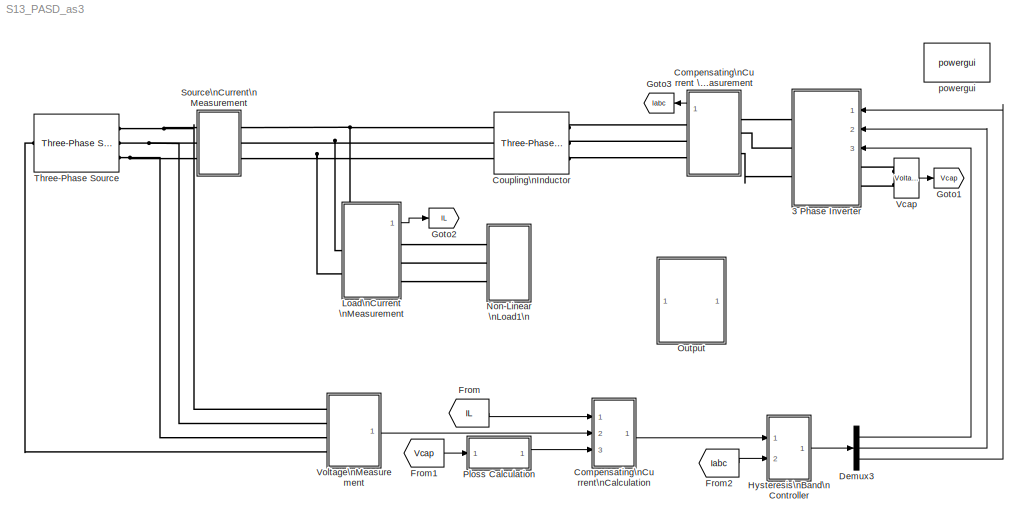
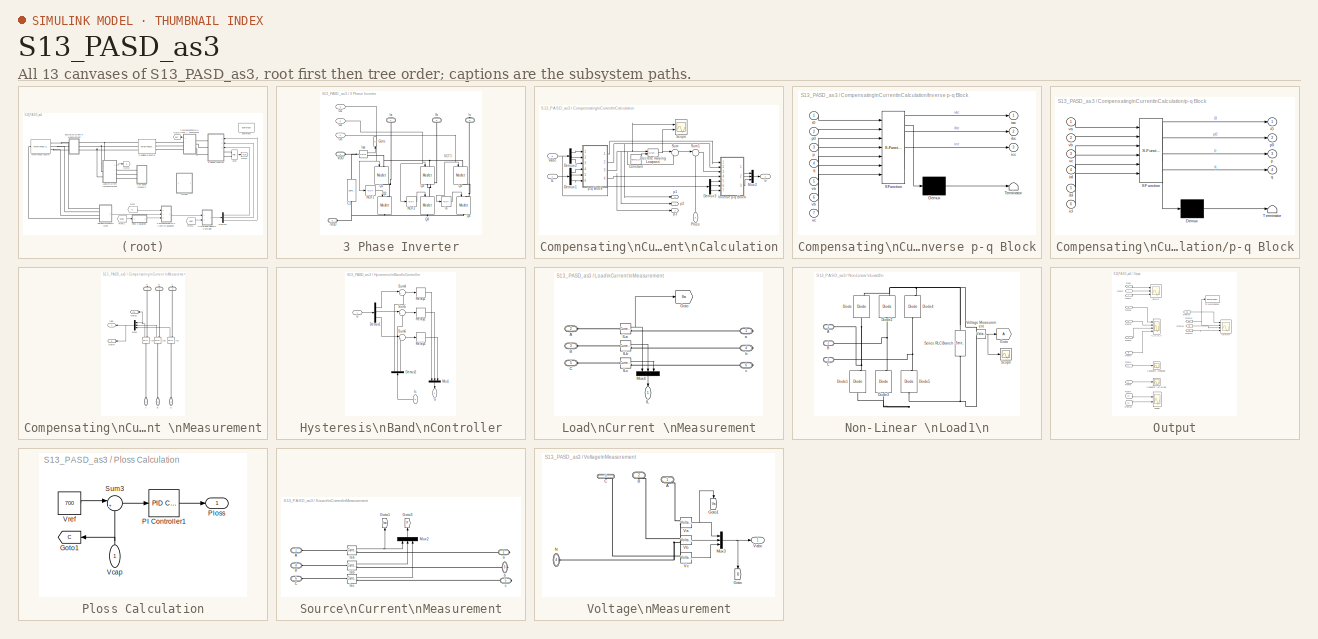
[diagram: thumbnail index - all 13 canvases of the model, root first then tree order]
MODEL S13_PASD_as3
KIND model
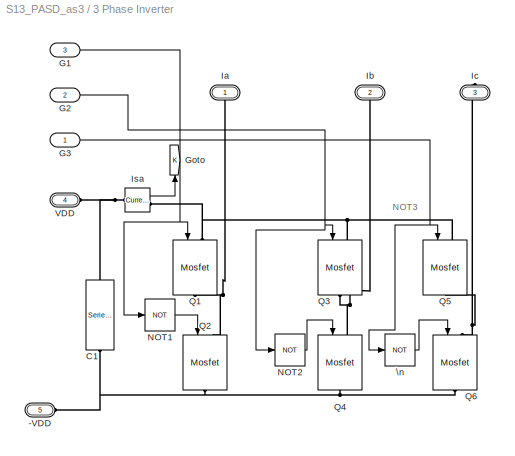
BLOCK [SubSystem] 3 Phase Inverter
  Ports = [3, 0, 0, 0, 0, 2, 3]
  RequestExecContextInheritance = off
  SID = 217
BLOCK [PMIOPort] 3 Phase Inverter/-VDD
  Port = 5
  SID = 238
  Side = Left
BLOCK [Reference] 3 Phase Inverter/C1  REF=powerlib/Elements/Series RLC Branch
  BranchType = C
  Capacitance = 500e-6
  Inductance = 1e-3
  InitialCurrent = 0
  InitialVoltage = 700
  LConnTagsString = __new0
  Measurements = None
  Ports = [0, 0, 0, 0, 0, 1, 1]
  RConnTagsString = __new0
  Resistance = 1
  SID = 222
  SetiL0 = off
  Setx0 = off
  SourceBlock = powerlib/Elements/Series RLC Branch
  SourceType = Series RLC Branch
BLOCK [Inport] 3 Phase Inverter/G1
  Port = 3
  SID = 218
BLOCK [Inport] 3 Phase Inverter/G2
  Port = 2
  SID = 219
BLOCK [Inport] 3 Phase Inverter/G3
  SID = 220
BLOCK [Goto] 3 Phase Inverter/Goto
  GotoTag = K
  SID = 224
  TagVisibility = global
BLOCK [PMIOPort] 3 Phase Inverter/Ia
  SID = 234
  Side = Right
BLOCK [PMIOPort] 3 Phase Inverter/Ib
  Port = 2
  SID = 235
  Side = Right
BLOCK [PMIOPort] 3 Phase Inverter/Ic
  Port = 3
  SID = 236
  Side = Right
BLOCK [Reference] 3 Phase Inverter/Isa  REF=powerlib/Measurements/Current Measurement
  OutputType = Complex
  PSBequivalent = 0
  PhasorSimulation = off
  Ports = [0, 1, 0, 0, 0, 1, 1]
  RTWMemSecDataConstants = Inherit from model
  RTWMemSecDataInternal = Inherit from model
  RTWMemSecDataParameters = Inherit from model
  RTWMemSecFuncExecute = Inherit from model
  RTWMemSecFuncInitTerm = Inherit from model
  SID = 225
  SourceBlock = powerlib/Measurements/Current Measurement
  SourceType = Current Measurement
  UserDataPersistent = on
BLOCK [Logic] 3 Phase Inverter/NOT1
  AllPortsSameDT = off
  Operator = NOT
  OutDataTypeStr = boolean
  Ports = [1, 1]
  SID = 226
BLOCK [Logic] 3 Phase Inverter/NOT2
  AllPortsSameDT = off
  Operator = NOT
  OutDataTypeStr = boolean
  Ports = [1, 1]
  SID = 227
BLOCK [Reference] 3 Phase Inverter/Q1  REF=powerlib/Power\nElectronics/Mosfet
  Cs = inf
  IC = 0
  Lon = 0
  Measurements = off
  Ports = [1, 0, 0, 0, 0, 1, 1]
  RTWMemSecDataConstants = Inherit from model
  RTWMemSecDataInternal = Inherit from model
  RTWMemSecDataParameters = Inherit from model
  RTWMemSecFuncExecute = Inherit from model
  RTWMemSecFuncInitTerm = Inherit from model
  Rd = 0.01
  Ron = 0.01
  Rs = 1e10
  SID = 228
  SourceBlock = powerlib/Power\nElectronics/Mosfet
  SourceType = Mosfet
  Vfd = 0
BLOCK [Reference] 3 Phase Inverter/Q2  REF=powerlib/Power\nElectronics/Mosfet
  Cs = inf
  IC = 0
  Lon = 0
  Measurements = off
  Ports = [1, 0, 0, 0, 0, 1, 1]
  RTWMemSecDataConstants = Inherit from model
  RTWMemSecDataInternal = Inherit from model
  RTWMemSecDataParameters = Inherit from model
  RTWMemSecFuncExecute = Inherit from model
  RTWMemSecFuncInitTerm = Inherit from model
  Rd = 0.01
  Ron = 0.01
  Rs = 1e10
  SID = 229
  SourceBlock = powerlib/Power\nElectronics/Mosfet
  SourceType = Mosfet
  Vfd = 0
BLOCK [Reference] 3 Phase Inverter/Q3  REF=powerlib/Power\nElectronics/Mosfet
  Cs = inf
  IC = 0
  Lon = 0
  Measurements = off
  Ports = [1, 0, 0, 0, 0, 1, 1]
  RTWMemSecDataConstants = Inherit from model
  RTWMemSecDataInternal = Inherit from model
  RTWMemSecDataParameters = Inherit from model
  RTWMemSecFuncExecute = Inherit from model
  RTWMemSecFuncInitTerm = Inherit from model
  Rd = 0.01
  Ron = 0.01
  Rs = 1e10
  SID = 230
  SourceBlock = powerlib/Power\nElectronics/Mosfet
  SourceType = Mosfet
  Vfd = 0
BLOCK [Reference] 3 Phase Inverter/Q4  REF=powerlib/Power\nElectronics/Mosfet
  Cs = inf
  IC = 0
  Lon = 0
  Measurements = off
  Ports = [1, 0, 0, 0, 0, 1, 1]
  RTWMemSecDataConstants = Inherit from model
  RTWMemSecDataInternal = Inherit from model
  RTWMemSecDataParameters = Inherit from model
  RTWMemSecFuncExecute = Inherit from model
  RTWMemSecFuncInitTerm = Inherit from model
  Rd = 0.01
  Ron = 0.01
  Rs = 1e10
  SID = 231
  SourceBlock = powerlib/Power\nElectronics/Mosfet
  SourceType = Mosfet
  Vfd = 0
BLOCK [Reference] 3 Phase Inverter/Q5  REF=powerlib/Power\nElectronics/Mosfet
  Cs = inf
  IC = 0
  Lon = 0
  Measurements = off
  Ports = [1, 0, 0, 0, 0, 1, 1]
  RTWMemSecDataConstants = Inherit from model
  RTWMemSecDataInternal = Inherit from model
  RTWMemSecDataParameters = Inherit from model
  RTWMemSecFuncExecute = Inherit from model
  RTWMemSecFuncInitTerm = Inherit from model
  Rd = 0.01
  Ron = 0.01
  Rs = 1e10
  SID = 232
  SourceBlock = powerlib/Power\nElectronics/Mosfet
  SourceType = Mosfet
  Vfd = 0
BLOCK [Reference] 3 Phase Inverter/Q6  REF=powerlib/Power\nElectronics/Mosfet
  Cs = inf
  IC = 0
  Lon = 0
  Measurements = off
  Ports = [1, 0, 0, 0, 0, 1, 1]
  RTWMemSecDataConstants = Inherit from model
  RTWMemSecDataInternal = Inherit from model
  RTWMemSecDataParameters = Inherit from model
  RTWMemSecFuncExecute = Inherit from model
  RTWMemSecFuncInitTerm = Inherit from model
  Rd = 0.01
  Ron = 0.01
  Rs = 1e10
  SID = 233
  SourceBlock = powerlib/Power\nElectronics/Mosfet
  SourceType = Mosfet
  Vfd = 0
BLOCK [PMIOPort] 3 Phase Inverter/VDD
  Port = 4
  SID = 237
  Side = Left
BLOCK [Logic] 3 Phase Inverter/\n
  AllPortsSameDT = off
  Operator = NOT
  OutDataTypeStr = boolean
  Ports = [1, 1]
  SID = 221
BLOCK [SubSystem] Compensating\nCurrent \nMeasurement
  Ports = [0, 1, 0, 0, 0, 3, 3]
  RequestExecContextInheritance = off
  SID = 296
BLOCK [PMIOPort] Compensating\nCurrent \nMeasurement/A
  Port = 4
  SID = 305
  Side = Left
BLOCK [PMIOPort] Compensating\nCurrent \nMeasurement/B
  Port = 5
  SID = 306
  Side = Left
BLOCK [PMIOPort] Compensating\nCurrent \nMeasurement/C
  Port = 6
  SID = 307
  Side = Left
BLOCK [Goto] Compensating\nCurrent \nMeasurement/Goto1
  GotoTag = Ifa
  SID = 334
  TagVisibility = global
BLOCK [Goto] Compensating\nCurrent \nMeasurement/Goto4
  GotoTag = G
  SID = 297
  TagVisibility = global
BLOCK [Outport] Compensating\nCurrent \nMeasurement/Iabc
  SID = 308
BLOCK [Reference] Compensating\nCurrent \nMeasurement/Ica  REF=powerlib/Measurements/Current Measurement
  OutputType = Complex
  PSBequivalent = 0
  PhasorSimulation = off
  Ports = [0, 1, 0, 0, 0, 1, 1]
  RTWMemSecDataConstants = Inherit from model
  RTWMemSecDataInternal = Inherit from model
  RTWMemSecDataParameters = Inherit from model
  RTWMemSecFuncExecute = Inherit from model
  RTWMemSecFuncInitTerm = Inherit from model
  SID = 298
  SourceBlock = powerlib/Measurements/Current Measurement
  SourceType = Current Measurement
  UserDataPersistent = on
BLOCK [Reference] Compensating\nCurrent \nMeasurement/Icb  REF=powerlib/Measurements/Current Measurement
  OutputType = Complex
  PSBequivalent = 0
  PhasorSimulation = off
  Ports = [0, 1, 0, 0, 0, 1, 1]
  RTWMemSecDataConstants = Inherit from model
  RTWMemSecDataInternal = Inherit from model
  RTWMemSecDataParameters = Inherit from model
  RTWMemSecFuncExecute = Inherit from model
  RTWMemSecFuncInitTerm = Inherit from model
  SID = 299
  SourceBlock = powerlib/Measurements/Current Measurement
  SourceType = Current Measurement
  UserDataPersistent = on
BLOCK [Reference] Compensating\nCurrent \nMeasurement/Icc  REF=powerlib/Measurements/Current Measurement
  OutputType = Complex
  PSBequivalent = 0
  PhasorSimulation = off
  Ports = [0, 1, 0, 0, 0, 1, 1]
  RTWMemSecDataConstants = Inherit from model
  RTWMemSecDataInternal = Inherit from model
  RTWMemSecDataParameters = Inherit from model
  RTWMemSecFuncExecute = Inherit from model
  RTWMemSecFuncInitTerm = Inherit from model
  SID = 300
  SourceBlock = powerlib/Measurements/Current Measurement
  SourceType = Current Measurement
  UserDataPersistent = on
BLOCK [Mux] Compensating\nCurrent \nMeasurement/Mux1
  DisplayOption = bar
  Inputs = 3
  Ports = [3, 1]
  SID = 301
BLOCK [PMIOPort] Compensating\nCurrent \nMeasurement/a
  SID = 302
  Side = Right
BLOCK [PMIOPort] Compensating\nCurrent \nMeasurement/b
  Port = 2
  SID = 303
  Side = Right
BLOCK [PMIOPort] Compensating\nCurrent \nMeasurement/c
  Port = 3
  SID = 304
  Side = Right
BLOCK [SubSystem] Compensating\nCurrent\nCalculation
  Ports = [3, 1]
  RequestExecContextInheritance = off
  SID = 249
BLOCK [Constant] Compensating\nCurrent\nCalculation/Constant
  SID = 353
  Value = 50*2*3.14
BLOCK [Demux] Compensating\nCurrent\nCalculation/Demux1
  Outputs = 3
  Ports = [1, 3]
  SID = 253
BLOCK [Demux] Compensating\nCurrent\nCalculation/Demux2
  Outputs = 3
  Ports = [1, 3]
  SID = 254
BLOCK [Demux] Compensating\nCurrent\nCalculation/Demux3
  Outputs = 3
  Ports = [1, 3]
  SID = 255
BLOCK [Reference] Compensating\nCurrent\nCalculation/Discrete Varying Lowpass  REF=cstblocks/Linear Parameter Varying/Discrete Varying Lowpass
  N = 3
  Ports = [2, 1]
  RTWMemSecDataConstants = Inherit from model
  RTWMemSecDataInternal = Inherit from model
  RTWMemSecDataParameters = Inherit from model
  RTWMemSecFuncExecute = Inherit from model
  RTWMemSecFuncInitTerm = Inherit from model
  SID = 352
  SourceBlock = cstblocks/Linear Parameter Varying/Discrete Varying Lowpass
  SourceType = Discrete Varying Lowpass
  Ts = 1e-3
  w0 = 0
BLOCK [Inport] Compensating\nCurrent\nCalculation/IL
  SID = 252
BLOCK [SubSystem] Compensating\nCurrent\nCalculation/Inverse p-q Block
  ErrorFcn = Stateflow.Translate.translate
  PermitHierarchicalResolution = ExplicitOnly
  Ports = [7, 3]
  RequestExecContextInheritance = off
  SFBlockType = MATLAB Function
  SID = 256
  TreatAsAtomicUnit = on
BLOCK [Demux] Compensating\nCurrent\nCalculation/Inverse p-q Block/ Demux 
  Outputs = 1
  Ports = [1, 1]
  SID = 256::39
BLOCK [S-Function] Compensating\nCurrent\nCalculation/Inverse p-q Block/ SFunction 
  EnableBusSupport = off
  FunctionName = sf_sfun
  PortCounts = [7 4]
  Ports = [7, 4]
  SFunctionDeploymentMode = off
  SID = 256::38
  Tag = Stateflow S-Function S13_PASD_as3 1
BLOCK [Terminator] Compensating\nCurrent\nCalculation/Inverse p-q Block/ Terminator 
  SID = 256::40
BLOCK [Inport] Compensating\nCurrent\nCalculation/Inverse p-q Block/i0
  SID = 256::28
BLOCK [Outport] Compensating\nCurrent\nCalculation/Inverse p-q Block/iac
  SID = 256::5
BLOCK [Outport] Compensating\nCurrent\nCalculation/Inverse p-q Block/ibc
  Port = 2
  SID = 256::25
BLOCK [Outport] Compensating\nCurrent\nCalculation/Inverse p-q Block/icc
  Port = 3
  SID = 256::26
BLOCK [Inport] Compensating\nCurrent\nCalculation/Inverse p-q Block/p
  Port = 3
  SID = 256::1
BLOCK [Inport] Compensating\nCurrent\nCalculation/Inverse p-q Block/p0
  Port = 2
  SID = 256::27
BLOCK [Inport] Compensating\nCurrent\nCalculation/Inverse p-q Block/q
  Port = 4
  SID = 256::21
BLOCK [Inport] Compensating\nCurrent\nCalculation/Inverse p-q Block/va
  Port = 5
  SID = 256::22
BLOCK [Inport] Compensating\nCurrent\nCalculation/Inverse p-q Block/vb
  Port = 6
  SID = 256::23
BLOCK [Inport] Compensating\nCurrent\nCalculation/Inverse p-q Block/vc
  Port = 7
  SID = 256::24
BLOCK [Outport] Compensating\nCurrent\nCalculation/Ir
  SID = 265
BLOCK [Mux] Compensating\nCurrent\nCalculation/Mux2
  DisplayOption = bar
  Inputs = 3
  Ports = [3, 1]
  SID = 258
BLOCK [Inport] Compensating\nCurrent\nCalculation/Ploss
  Port = 3
  SID = 250
BLOCK [Scope] Compensating\nCurrent\nCalculation/Scope
  Floating = off
  NumInputPorts = 2
  Ports = [2]
  SID = 351
  ScopeSpecificationString = Simulink.scopes.TimeScopeBlockCfg('CurrentConfiguration', extmgr.ConfigurationSet(extmgr.Configuration('Core','General UI',true),extmgr.Configuration('Core','Source UI',true),extmgr.Configuration('Sources','WiredSimulink',true,'DataLoggingVariableName','ScopeData1'),extmgr.Configuration('Visuals','Time Domain',true,'SerializedDisplays',{struct('MinYLimReal','-951.65679','MaxYLimReal','8572.66551',...<+1469ch>
BLOCK [Sum] Compensating\nCurrent\nCalculation/Sum
  Inputs = |-+
  Ports = [2, 1]
  SID = 259
BLOCK [Sum] Compensating\nCurrent\nCalculation/Sum1
  Inputs = |+-
  Ports = [2, 1]
  SID = 260
BLOCK [Inport] Compensating\nCurrent\nCalculation/Vabc
  Port = 2
  SID = 251
BLOCK [SubSystem] Compensating\nCurrent\nCalculation/p-q Block
  ErrorFcn = Stateflow.Translate.translate
  PermitHierarchicalResolution = ExplicitOnly
  Ports = [6, 4]
  RequestExecContextInheritance = off
  SFBlockType = MATLAB Function
  SID = 261
  TreatAsAtomicUnit = on
BLOCK [Demux] Compensating\nCurrent\nCalculation/p-q Block/ Demux 
  Outputs = 1
  Ports = [1, 1]
  SID = 261::40
BLOCK [S-Function] Compensating\nCurrent\nCalculation/p-q Block/ SFunction 
  EnableBusSupport = off
  FunctionName = sf_sfun
  PortCounts = [6 5]
  Ports = [6, 5]
  SFunctionDeploymentMode = off
  SID = 261::39
  Tag = Stateflow S-Function S13_PASD_as3 2
BLOCK [Terminator] Compensating\nCurrent\nCalculation/p-q Block/ Terminator 
  SID = 261::41
BLOCK [Outport] Compensating\nCurrent\nCalculation/p-q Block/i0
  SID = 261::28
BLOCK [Inport] Compensating\nCurrent\nCalculation/p-q Block/ial
  Port = 4
  SID = 261::23
BLOCK [Inport] Compensating\nCurrent\nCalculation/p-q Block/ibl
  Port = 5
  SID = 261::24
BLOCK [Inport] Compensating\nCurrent\nCalculation/p-q Block/icl
  Port = 6
  SID = 261::25
BLOCK [Outport] Compensating\nCurrent\nCalculation/p-q Block/p
  Port = 3
  SID = 261::5
BLOCK [Outport] Compensating\nCurrent\nCalculation/p-q Block/p0
  Port = 2
  SID = 261::27
BLOCK [Outport] Compensating\nCurrent\nCalculation/p-q Block/q
  Port = 4
  SID = 261::26
BLOCK [Inport] Compensating\nCurrent\nCalculation/p-q Block/va
  SID = 261::1
BLOCK [Inport] Compensating\nCurrent\nCalculation/p-q Block/vb
  Port = 2
  SID = 261::21
BLOCK [Inport] Compensating\nCurrent\nCalculation/p-q Block/vc
  Port = 3
  SID = 261::22
BLOCK [Goto] Compensating\nCurrent\nCalculation/p1
  GotoTag = H
  SID = 262
  TagVisibility = global
BLOCK [Goto] Compensating\nCurrent\nCalculation/p2
  GotoTag = I
  SID = 263
  TagVisibility = global
BLOCK [Goto] Compensating\nCurrent\nCalculation/p3
  GotoTag = J
  SID = 264
  TagVisibility = global
BLOCK [Reference] Coupling\nInductor  REF=powerlib/Elements/Three-Phase\nSeries RLC Branch
  AttributesFormatString = \\n
  BranchType = RL
  Capacitance = 1e-6
  Inductance = 0.0004
  LConnTagsString = A|B|C
  Measurements = None
  Ports = [0, 0, 0, 0, 0, 3, 3]
  RConnTagsString = A|B|C
  Resistance = 0.0001
  SID = 192
  SourceBlock = powerlib/Elements/Three-Phase\nSeries RLC Branch
  SourceType = Three-Phase Series RLC Branch
BLOCK [Demux] Demux3
  Outputs = 3
  Ports = [1, 3]
  SID = 282
BLOCK [From] From
  GotoTag = IL
  SID = 279
  TagVisibility = global
BLOCK [From] From1
  GotoTag = Vcap
  SID = 280
  TagVisibility = global
BLOCK [From] From2
  GotoTag = Iabc
  SID = 310
  TagVisibility = global
BLOCK [Goto] Goto1
  GotoTag = Vcap
  SID = 281
  TagVisibility = global
BLOCK [Goto] Goto2
  GotoTag = IL
  SID = 278
  TagVisibility = global
BLOCK [Goto] Goto3
  GotoTag = Iabc
  SID = 309
  TagVisibility = global
BLOCK [SubSystem] Hysteresis\nBand\nController
  Ports = [2, 1]
  RequestExecContextInheritance = off
  SID = 283
BLOCK [Demux] Hysteresis\nBand\nController/Demux1
  Outputs = 3
  Ports = [1, 3]
  SID = 286
BLOCK [Demux] Hysteresis\nBand\nController/Demux2
  Outputs = 3
  Ports = [1, 3]
  SID = 287
BLOCK [Outport] Hysteresis\nBand\nController/G
  SID = 295
BLOCK [Inport] Hysteresis\nBand\nController/Ic
  Port = 2
  SID = 285
BLOCK [Inport] Hysteresis\nBand\nController/Ir
  SID = 284
BLOCK [Mux] Hysteresis\nBand\nController/Mux1
  DisplayOption = bar
  Inputs = 3
  Ports = [3, 1]
  SID = 288
BLOCK [Relay] Hysteresis\nBand\nController/Relay1
  OffSwitchValue = -0.0001
  OnSwitchValue = 0.0001
  SID = 289
  ZeroCross = off
BLOCK [Relay] Hysteresis\nBand\nController/Relay2
  OffSwitchValue = -0.0001
  OnSwitchValue = 0.0001
  SID = 290
  ZeroCross = off
BLOCK [Relay] Hysteresis\nBand\nController/Relay3
  OffSwitchValue = -0.0001
  OnSwitchValue = 0.0001
  SID = 291
  ZeroCross = off
BLOCK [Sum] Hysteresis\nBand\nController/Sum4
  Inputs = |+-
  Ports = [2, 1]
  SID = 292
BLOCK [Sum] Hysteresis\nBand\nController/Sum5
  Inputs = |+-
  Ports = [2, 1]
  SID = 293
BLOCK [Sum] Hysteresis\nBand\nController/Sum6
  Inputs = |+-
  Ports = [2, 1]
  SID = 294
BLOCK [SubSystem] Load\nCurrent \nMeasurement
  Ports = [0, 1, 0, 0, 0, 3, 3]
  RequestExecContextInheritance = off
  SID = 266
BLOCK [PMIOPort] Load\nCurrent \nMeasurement/A
  Port = 2
  SID = 272
  Side = Left
BLOCK [PMIOPort] Load\nCurrent \nMeasurement/B
  Port = 3
  SID = 273
  Side = Left
BLOCK [PMIOPort] Load\nCurrent \nMeasurement/C
  Port = 5
  SID = 275
  Side = Left
BLOCK [Goto] Load\nCurrent \nMeasurement/Goto
  GotoTag = Ila
  SID = 335
  TagVisibility = global
BLOCK [Outport] Load\nCurrent \nMeasurement/IL
  SID = 277
BLOCK [Reference] Load\nCurrent \nMeasurement/ILa  REF=powerlib/Measurements/Current Measurement
  OutputType = Complex
  PSBequivalent = 0
  PhasorSimulation = off
  Ports = [0, 1, 0, 0, 0, 1, 1]
  RTWMemSecDataConstants = Inherit from model
  RTWMemSecDataInternal = Inherit from model
  RTWMemSecDataParameters = Inherit from model
  RTWMemSecFuncExecute = Inherit from model
  RTWMemSecFuncInitTerm = Inherit from model
  SID = 267
  SourceBlock = powerlib/Measurements/Current Measurement
  SourceType = Current Measurement
  UserDataPersistent = on
BLOCK [Reference] Load\nCurrent \nMeasurement/ILb  REF=powerlib/Measurements/Current Measurement
  OutputType = Complex
  PSBequivalent = 0
  PhasorSimulation = off
  Ports = [0, 1, 0, 0, 0, 1, 1]
  RTWMemSecDataConstants = Inherit from model
  RTWMemSecDataInternal = Inherit from model
  RTWMemSecDataParameters = Inherit from model
  RTWMemSecFuncExecute = Inherit from model
  RTWMemSecFuncInitTerm = Inherit from model
  SID = 268
  SourceBlock = powerlib/Measurements/Current Measurement
  SourceType = Current Measurement
  UserDataPersistent = on
BLOCK [Reference] Load\nCurrent \nMeasurement/ILc  REF=powerlib/Measurements/Current Measurement
  OutputType = Complex
  PSBequivalent = 0
  PhasorSimulation = off
  Ports = [0, 1, 0, 0, 0, 1, 1]
  RTWMemSecDataConstants = Inherit from model
  RTWMemSecDataInternal = Inherit from model
  RTWMemSecDataParameters = Inherit from model
  RTWMemSecFuncExecute = Inherit from model
  RTWMemSecFuncInitTerm = Inherit from model
  SID = 269
  SourceBlock = powerlib/Measurements/Current Measurement
  SourceType = Current Measurement
  UserDataPersistent = on
BLOCK [Mux] Load\nCurrent \nMeasurement/Mux4
  DisplayOption = bar
  Inputs = 3
  Ports = [3, 1]
  SID = 270
BLOCK [PMIOPort] Load\nCurrent \nMeasurement/a
  SID = 271
  Side = Right
BLOCK [PMIOPort] Load\nCurrent \nMeasurement/b
  Port = 4
  SID = 274
  Side = Right
BLOCK [PMIOPort] Load\nCurrent \nMeasurement/c
  Port = 6
  SID = 276
  Side = Right
BLOCK [SubSystem] Non-Linear \nLoad1\n
  Ports = [0, 0, 0, 0, 0, 3]
  RequestExecContextInheritance = off
  SID = 205
BLOCK [PMIOPort] Non-Linear \nLoad1\n/A
  SID = 213
  Side = Left
BLOCK [PMIOPort] Non-Linear \nLoad1\n/B
  Port = 2
  SID = 214
  Side = Left
BLOCK [PMIOPort] Non-Linear \nLoad1\n/C
  Port = 3
  SID = 215
  Side = Left
BLOCK [Reference] Non-Linear \nLoad1\n/Diode  REF=powerlib/Power\nElectronics/Diode
  Cs = 250e-9
  IC = 0
  Lon = 0
  Measurements = on
  Ports = [0, 1, 0, 0, 0, 1, 1]
  RTWMemSecDataConstants = Inherit from model
  RTWMemSecDataInternal = Inherit from model
  RTWMemSecDataParameters = Inherit from model
  RTWMemSecFuncExecute = Inherit from model
  RTWMemSecFuncInitTerm = Inherit from model
  Ron = 0.001
  Rs = 500
  SID = 206
  SourceBlock = powerlib/Power\nElectronics/Diode
  SourceType = Diode
  UseSnubber = 0
  Vf = 0.8
BLOCK [Reference] Non-Linear \nLoad1\n/Diode1  REF=powerlib/Power\nElectronics/Diode
  Cs = 250e-9
  IC = 0
  Lon = 0
  Measurements = on
  Ports = [0, 1, 0, 0, 0, 1, 1]
  RTWMemSecDataConstants = Inherit from model
  RTWMemSecDataInternal = Inherit from model
  RTWMemSecDataParameters = Inherit from model
  RTWMemSecFuncExecute = Inherit from model
  RTWMemSecFuncInitTerm = Inherit from model
  Ron = 0.001
  Rs = 500
  SID = 207
  SourceBlock = powerlib/Power\nElectronics/Diode
  SourceType = Diode
  UseSnubber = 0
  Vf = 0.8
BLOCK [Reference] Non-Linear \nLoad1\n/Diode2  REF=powerlib/Power\nElectronics/Diode
  Cs = 250e-9
  IC = 0
  Lon = 0
  Measurements = on
  Ports = [0, 1, 0, 0, 0, 1, 1]
  RTWMemSecDataConstants = Inherit from model
  RTWMemSecDataInternal = Inherit from model
  RTWMemSecDataParameters = Inherit from model
  RTWMemSecFuncExecute = Inherit from model
  RTWMemSecFuncInitTerm = Inherit from model
  Ron = 0.001
  Rs = 500
  SID = 208
  SourceBlock = powerlib/Power\nElectronics/Diode
  SourceType = Diode
  UseSnubber = 0
  Vf = 0.8
BLOCK [Reference] Non-Linear \nLoad1\n/Diode3  REF=powerlib/Power\nElectronics/Diode
  Cs = 250e-9
  IC = 0
  Lon = 0
  Measurements = on
  Ports = [0, 1, 0, 0, 0, 1, 1]
  RTWMemSecDataConstants = Inherit from model
  RTWMemSecDataInternal = Inherit from model
  RTWMemSecDataParameters = Inherit from model
  RTWMemSecFuncExecute = Inherit from model
  RTWMemSecFuncInitTerm = Inherit from model
  Ron = 0.001
  Rs = 500
  SID = 209
  SourceBlock = powerlib/Power\nElectronics/Diode
  SourceType = Diode
  UseSnubber = 0
  Vf = 0.8
BLOCK [Reference] Non-Linear \nLoad1\n/Diode4  REF=powerlib/Power\nElectronics/Diode
  Cs = 250e-9
  IC = 0
  Lon = 0
  Measurements = on
  Ports = [0, 1, 0, 0, 0, 1, 1]
  RTWMemSecDataConstants = Inherit from model
  RTWMemSecDataInternal = Inherit from model
  RTWMemSecDataParameters = Inherit from model
  RTWMemSecFuncExecute = Inherit from model
  RTWMemSecFuncInitTerm = Inherit from model
  Ron = 0.001
  Rs = 500
  SID = 210
  SourceBlock = powerlib/Power\nElectronics/Diode
  SourceType = Diode
  UseSnubber = 0
  Vf = 0.8
BLOCK [Reference] Non-Linear \nLoad1\n/Diode5  REF=powerlib/Power\nElectronics/Diode
  Cs = 250e-9
  IC = 0
  Lon = 0
  Measurements = on
  Ports = [0, 1, 0, 0, 0, 1, 1]
  RTWMemSecDataConstants = Inherit from model
  RTWMemSecDataInternal = Inherit from model
  RTWMemSecDataParameters = Inherit from model
  RTWMemSecFuncExecute = Inherit from model
  RTWMemSecFuncInitTerm = Inherit from model
  Ron = 0.001
  Rs = 500
  SID = 211
  SourceBlock = powerlib/Power\nElectronics/Diode
  SourceType = Diode
  UseSnubber = 0
  Vf = 0.8
BLOCK [Goto] Non-Linear \nLoad1\n/Goto
  SID = 349
BLOCK [Scope] Non-Linear \nLoad1\n/Scope
  Floating = off
  NumInputPorts = 1
  Ports = [1]
  SID = 350
  ScopeSpecificationString = Simulink.scopes.TimeScopeBlockCfg('CurrentConfiguration', extmgr.ConfigurationSet(extmgr.Configuration('Core','General UI',true),extmgr.Configuration('Core','Source UI',true),extmgr.Configuration('Sources','WiredSimulink',true,'DataLoggingVariableName','ScopeData1'),extmgr.Configuration('Visuals','Time Domain',true,'SerializedDisplays',{struct('MinYLimReal','478.76162','MaxYLimReal','573.56794','Y...<+1492ch>
BLOCK [Reference] Non-Linear \nLoad1\n/Series RLC Branch  REF=powerlib/Elements/Series RLC Branch
  BranchType = RL
  Capacitance = 1e-6
  Inductance = 0.5
  InitialCurrent = 0
  InitialVoltage = 0
  LConnTagsString = __new0
  Measurements = None
  Ports = [0, 0, 0, 0, 0, 1, 1]
  RConnTagsString = __new0
  Resistance = 40
  SID = 212
  SetiL0 = off
  Setx0 = off
  SourceBlock = powerlib/Elements/Series RLC Branch
  SourceType = Series RLC Branch
BLOCK [Reference] Non-Linear \nLoad1\n/Voltage Measurement  REF=powerlib/Measurements/Voltage Measurement
  OutputType = Complex
  PSBequivalent = 0
  PhasorSimulation = off
  Ports = [0, 1, 0, 0, 0, 2]
  RTWMemSecDataConstants = Inherit from model
  RTWMemSecDataInternal = Inherit from model
  RTWMemSecDataParameters = Inherit from model
  RTWMemSecFuncExecute = Inherit from model
  RTWMemSecFuncInitTerm = Inherit from model
  SID = 348
  SourceBlock = powerlib/Measurements/Voltage Measurement
  SourceType = Voltage Measurement
  UserDataPersistent = on
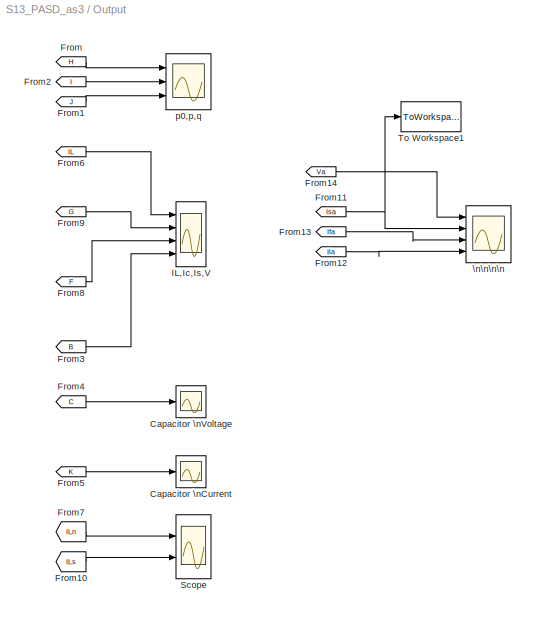
BLOCK [SubSystem] Output
  Ports = []
  RequestExecContextInheritance = off
  SID = 311
BLOCK [Scope] Output/Capacitor \nCurrent
  Floating = off
  NumInputPorts = 1
  Ports = [1]
  SID = 312
  ScopeSpecificationString = Simulink.scopes.TimeScopeBlockCfg('CurrentConfiguration', extmgr.ConfigurationSet(extmgr.Configuration('Core','General UI',true,'FigureColor',[0.156862745098039 0.156862745098039 0.156862745098039]),extmgr.Configuration('Core','Source UI',true),extmgr.Configuration('Sources','WiredSimulink',true,'DataLoggingVariableName','ScopeData1','DataLoggingSaveFormat','StructureWithTime','DataLoggingDecimati...<+2798ch>
BLOCK [Scope] Output/Capacitor \nVoltage
  Floating = off
  NumInputPorts = 1
  Ports = [1]
  SID = 313
  ScopeSpecificationString = Simulink.scopes.TimeScopeBlockCfg('CurrentConfiguration', extmgr.ConfigurationSet(extmgr.Configuration('Core','General UI',true,'FigureColor',[0.156862745098039 0.156862745098039 0.156862745098039]),extmgr.Configuration('Core','Source UI',true),extmgr.Configuration('Sources','WiredSimulink',true,'DataLoggingVariableName','ScopeData3','DataLoggingSaveFormat','StructureWithTime','DataLoggingDecimati...<+2810ch>
BLOCK [From] Output/From
  GotoTag = H
  SID = 314
  TagVisibility = global
BLOCK [From] Output/From1
  GotoTag = J
  SID = 315
  TagVisibility = global
BLOCK [From] Output/From10
  GotoTag = ILs
  SID = 316
BLOCK [From] Output/From11
  GotoTag = Isa
  SID = 337
  TagVisibility = global
BLOCK [From] Output/From12
  GotoTag = Ila
  SID = 338
  TagVisibility = global
BLOCK [From] Output/From13
  GotoTag = Ifa
  SID = 339
  TagVisibility = global
BLOCK [From] Output/From14
  GotoTag = Va
  SID = 355
  TagVisibility = global
BLOCK [From] Output/From2
  GotoTag = I
  SID = 317
  TagVisibility = global
BLOCK [From] Output/From3
  GotoTag = B
  IconDisplay = Signal name
  SID = 318
  TagVisibility = global
BLOCK [From] Output/From4
  GotoTag = C
  SID = 319
  TagVisibility = global
BLOCK [From] Output/From5
  GotoTag = K
  SID = 320
  TagVisibility = global
BLOCK [From] Output/From6
  GotoTag = IL
  SID = 321
  TagVisibility = global
BLOCK [From] Output/From7
  GotoTag = ILn
  SID = 322
BLOCK [From] Output/From8
  GotoTag = F
  SID = 323
  TagVisibility = global
BLOCK [From] Output/From9
  GotoTag = G
  SID = 324
  TagVisibility = global
BLOCK [Scope] Output/IL,Ic,Is,V
  Floating = off
  NumInputPorts = 4
  Ports = [4]
  SID = 325
  ScopeSpecificationString = Simulink.scopes.TimeScopeBlockCfg('CurrentConfiguration', extmgr.ConfigurationSet(extmgr.Configuration('Core','General UI',true,'FigureColor',[0 0 0]),extmgr.Configuration('Core','Source UI',true),extmgr.Configuration('Sources','WiredSimulink',true,'DataLoggingMaxPoints','4e+5','DataLoggingSaveFormat','StructureWithTime','DataLoggingDecimation','1','DataLoggingDecimateData',true,'DataLogging',true...<+6171ch>
BLOCK [Scope] Output/Scope
  Floating = off
  NumInputPorts = 2
  Ports = [2]
  SID = 326
  ScopeSpecificationString = Simulink.scopes.TimeScopeBlockCfg('CurrentConfiguration', extmgr.ConfigurationSet(extmgr.Configuration('Core','General UI',true,'FigureColor',[0.156862745098039 0.156862745098039 0.156862745098039]),extmgr.Configuration('Core','Source UI',true),extmgr.Configuration('Sources','WiredSimulink',true,'DataLoggingVariableName','ScopeData1','DataLoggingSaveFormat','StructureWithTime','DataLoggingDecimati...<+4014ch>
BLOCK [ToWorkspace] Output/To Workspace1
  FixptAsFi = on
  MaxDataPoints = inf
  Ports = [1]
  SID = 328
  SampleTime = -1
  SaveFormat = Structure With Time
  VariableName = IS
BLOCK [Scope] Output/\n\n\n\n
  Floating = off
  NumInputPorts = 4
  Ports = [4]
  SID = 340
  ScopeSpecificationString = Simulink.scopes.TimeScopeBlockCfg('CurrentConfiguration', extmgr.ConfigurationSet(extmgr.Configuration('Core','General UI',true,'FigureColor',[0.156862745098039 0.156862745098039 0.156862745098039],'DisplayFullSourceName',true),extmgr.Configuration('Core','Source UI',true),extmgr.Configuration('Sources','WiredSimulink',true,'DataLoggingMaxPoints','20000','DataLoggingVariableName','ScopeData1','Dat...<+5904ch>
BLOCK [Scope] Output/p0,p,q
  Floating = off
  NumInputPorts = 3
  Ports = [3]
  SID = 329
  ScopeSpecificationString = Simulink.scopes.TimeScopeBlockCfg('CurrentConfiguration', extmgr.ConfigurationSet(extmgr.Configuration('Core','General UI',true,'FigureColor',[0.156862745098039 0.156862745098039 0.156862745098039]),extmgr.Configuration('Core','Source UI',true),extmgr.Configuration('Sources','WiredSimulink',true,'DataLoggingMaxPoints','20000','DataLoggingVariableName','ScopeData4','DataLoggingSaveFormat','Structur...<+5340ch>
BLOCK [SubSystem] Ploss Calculation
  Ports = [1, 1]
  RequestExecContextInheritance = off
  SID = 242
BLOCK [Goto] Ploss Calculation/Goto1
  GotoTag = C
  SID = 244
  TagVisibility = global
BLOCK [Reference] Ploss Calculation/PI Controller1  REF=simulink/Continuous/PID Controller
  AntiWindupMode = none
  Controller = PI
  ControllerParametersSource = internal
  D = 0
  DGainOutDataTypeStr = Inherit: Inherit via internal rule
  DOutMax = []
  DOutMin = []
  DParamDataTypeStr = Inherit: Inherit via internal rule
  DParamMax = []
  DParamMin = []
  DProdOutDataTypeStr = Inherit: Inherit via internal rule
  DifferentiatorICPrevScaledInput = 0
  DifferentiatorOutDataTypeStr = Inherit: Inherit via internal rule
  DifferentiatorOutMax = []
  DifferentiatorOutMin = []
  ExternalReset = none
  FilterContinuousStateAttributes = ''
  FilterMethod = Forward Euler
  FilterOutDataTypeStr = Inherit: Inherit via internal rule
  FilterOutMax = []
  FilterOutMin = []
  FilterRTWStateStorageClass = Auto
  FilterStateMustResolveToSignalObject = off
  Form = Parallel
  I = 5
  IGainOutDataTypeStr = Inherit: Inherit via internal rule
  IOutMax = []
  IOutMin = []
  IParamDataTypeStr = Inherit: Inherit via internal rule
  IParamMax = []
  IParamMin = []
  IProdOutDataTypeStr = Inherit: Inherit via internal rule
  IgnoreLimit = off
  InitialConditionForFilter = 0
  InitialConditionForIntegrator = 0
  InitialConditionSource = internal
  IntegratorContinuousStateAttributes = ''
  IntegratorMethod = Forward Euler
  IntegratorOutDataTypeStr = Inherit: Inherit via internal rule
  IntegratorOutMax = []
  IntegratorOutMin = []
  IntegratorRTWStateStorageClass = Auto
  IntegratorStateMustResolveToSignalObject = off
  Kb = 1
  KbOutDataTypeStr = Inherit: Inherit via internal rule
  KbOutMax = []
  KbOutMin = []
  KbParamDataTypeStr = Inherit: Inherit via internal rule
  KbParamMax = []
  KbParamMin = []
  Kt = 1
  KtOutDataTypeStr = Inherit: Inherit via internal rule
  KtOutMax = []
  KtOutMin = []
  KtParamDataTypeStr = Inherit: Inherit via internal rule
  KtParamMax = []
  KtParamMin = []
  LimitOutput = off
  LinearizeAsGain = off
  LockScale = off
  LowerSaturationLimit = -inf
  N = 100
  NGainOutDataTypeStr = Inherit: Inherit via internal rule
  NOutMax = []
  NOutMin = []
  NParamDataTypeStr = Inherit: Inherit via internal rule
  NParamMax = []
  NParamMin = []
  NProdOutDataTypeStr = Inherit: Inherit via internal rule
  P = 31.1
  PGainOutDataTypeStr = Inherit: Inherit via internal rule
  POutMax = []
  POutMin = []
  PParamDataTypeStr = Inherit: Inherit via internal rule
  PParamMax = []
  PParamMin = []
  PProdOutDataTypeStr = Inherit: Inherit via internal rule
  Ports = [1, 1]
  RTWMemSecDataConstants = Inherit from model
  RTWMemSecDataInternal = Inherit from model
  RTWMemSecDataParameters = Inherit from model
  RTWMemSecFuncExecute = Inherit from model
  RTWMemSecFuncInitTerm = Inherit from model
  RndMeth = Floor
  SID = 245
  SampleTime = -1
  SaturateOnIntegerOverflow = off
  SaturationOutDataTypeStr = Inherit: Same as input
  SaturationOutMax = []
  SaturationOutMin = []
  SourceBlock = simulink/Continuous/PID Controller
  SourceType = PID 1dof
  SumAccumDataTypeStr = Inherit: Inherit via internal rule
  SumDAccumDataTypeStr = Inherit: Inherit via internal rule
  SumDOutDataTypeStr = Inherit: Inherit via internal rule
  SumDOutMax = []
  SumDOutMin = []
  SumI1AccumDataTypeStr = Inherit: Inherit via internal rule
  SumI1OutDataTypeStr = Inherit: Inherit via internal rule
  SumI1OutMax = []
  SumI1OutMin = []
  SumI2AccumDataTypeStr = Inherit: Inherit via internal rule
  SumI2OutDataTypeStr = Inherit: Inherit via internal rule
  SumI2OutMax = []
  SumI2OutMin = []
  SumI3AccumDataTypeStr = Inherit: Inherit via internal rule
  SumI3OutDataTypeStr = Inherit: Inherit via internal rule
  SumI3OutMax = []
  SumI3OutMin = []
  SumOutDataTypeStr = Inherit: Inherit via internal rule
  SumOutMax = []
  SumOutMin = []
  TimeDomain = Continuous-time
  TrackingMode = off
  UpperSaturationLimit = inf
  UseFilter = on
  ZeroCross = off
BLOCK [Outport] Ploss Calculation/Ploss
  SID = 248
BLOCK [Sum] Ploss Calculation/Sum3
  Inputs = |+-
  Ports = [2, 1]
  SID = 246
BLOCK [Inport] Ploss Calculation/Vcap
  SID = 243
BLOCK [Constant] Ploss Calculation/Vref
  SID = 247
  Value = 700
BLOCK [SubSystem] Source\nCurrent\nMeasurement
  Ports = [0, 0, 0, 0, 0, 3, 3]
  RequestExecContextInheritance = off
  SID = 150
BLOCK [PMIOPort] Source\nCurrent\nMeasurement/A
  SID = 156
  Side = Left
BLOCK [PMIOPort] Source\nCurrent\nMeasurement/B
  Port = 4
  SID = 159
  Side = Left
BLOCK [PMIOPort] Source\nCurrent\nMeasurement/C
  Port = 6
  SID = 161
  Side = Left
BLOCK [Goto] Source\nCurrent\nMeasurement/Goto1
  GotoTag = Isa
  SID = 336
  TagVisibility = global
BLOCK [Goto] Source\nCurrent\nMeasurement/Goto3
  GotoTag = F
  SID = 151
  TagVisibility = global
BLOCK [Reference] Source\nCurrent\nMeasurement/Isa  REF=powerlib/Measurements/Current Measurement
  OutputType = Complex
  PSBequivalent = 0
  PhasorSimulation = off
  Ports = [0, 1, 0, 0, 0, 1, 1]
  RTWMemSecDataConstants = Inherit from model
  RTWMemSecDataInternal = Inherit from model
  RTWMemSecDataParameters = Inherit from model
  RTWMemSecFuncExecute = Inherit from model
  RTWMemSecFuncInitTerm = Inherit from model
  SID = 152
  SourceBlock = powerlib/Measurements/Current Measurement
  SourceType = Current Measurement
  UserDataPersistent = on
BLOCK [Reference] Source\nCurrent\nMeasurement/Isb  REF=powerlib/Measurements/Current Measurement
  OutputType = Complex
  PSBequivalent = 0
  PhasorSimulation = off
  Ports = [0, 1, 0, 0, 0, 1, 1]
  RTWMemSecDataConstants = Inherit from model
  RTWMemSecDataInternal = Inherit from model
  RTWMemSecDataParameters = Inherit from model
  RTWMemSecFuncExecute = Inherit from model
  RTWMemSecFuncInitTerm = Inherit from model
  SID = 153
  SourceBlock = powerlib/Measurements/Current Measurement
  SourceType = Current Measurement
  UserDataPersistent = on
BLOCK [Reference] Source\nCurrent\nMeasurement/Isc  REF=powerlib/Measurements/Current Measurement
  OutputType = Complex
  PSBequivalent = 0
  PhasorSimulation = off
  Ports = [0, 1, 0, 0, 0, 1, 1]
  RTWMemSecDataConstants = Inherit from model
  RTWMemSecDataInternal = Inherit from model
  RTWMemSecDataParameters = Inherit from model
  RTWMemSecFuncExecute = Inherit from model
  RTWMemSecFuncInitTerm = Inherit from model
  SID = 154
  SourceBlock = powerlib/Measurements/Current Measurement
  SourceType = Current Measurement
  UserDataPersistent = on
BLOCK [Mux] Source\nCurrent\nMeasurement/Mux2
  DisplayOption = bar
  Inputs = 3
  Ports = [3, 1]
  SID = 155
BLOCK [PMIOPort] Source\nCurrent\nMeasurement/a
  Port = 2
  SID = 157
  Side = Right
BLOCK [PMIOPort] Source\nCurrent\nMeasurement/b
  Port = 3
  SID = 158
  Side = Right
BLOCK [PMIOPort] Source\nCurrent\nMeasurement/c
  Port = 5
  SID = 160
  Side = Right
BLOCK [Reference] Three-Phase Source  REF=powerlib/Electrical\nSources/Three-Phase Source
  BaseVoltage = 40.83
  BusType = swing
  Frequency = 50
  Inductance = 16.58e-3
  InternalConnection = Yn
  NonIdealSource = on
  PhaseAngle = 0
  PhaseAngles_phases = [0 -120 +120]
  Ports = [0, 0, 0, 0, 0, 1, 3]
  Pref = 0
  Prefabc = [10e3, 10e3, 10e3]
  Qmax = inf
  Qmin = -inf
  Qref = 0
  Qrefabc = [0, 0, 0]
  RTWMemSecDataConstants = Inherit from model
  RTWMemSecDataInternal = Inherit from model
  RTWMemSecDataParameters = Inherit from model
  RTWMemSecFuncExecute = Inherit from model
  RTWMemSecFuncInitTerm = Inherit from model
  Resistance = 0.8929
  SID = 149
  ShortCircuitLevel = 100e6
  SourceBlock = powerlib/Electrical\nSources/Three-Phase Source
  SourceType = Three-Phase Source
  SpecifyImpedance = on
  Voltage = 400
  VoltagePhases = off
  Voltage_phases = [25e3 25e3 25e3]/sqrt(3)
  XRratio = 10
BLOCK [Reference] Vcap  REF=powerlib/Measurements/Voltage Measurement
  OutputType = Complex
  PSBequivalent = 0
  PhasorSimulation = off
  Ports = [0, 1, 0, 0, 0, 2]
  RTWMemSecDataConstants = Inherit from model
  RTWMemSecDataInternal = Inherit from model
  RTWMemSecDataParameters = Inherit from model
  RTWMemSecFuncExecute = Inherit from model
  RTWMemSecFuncInitTerm = Inherit from model
  SID = 241
  SourceBlock = powerlib/Measurements/Voltage Measurement
  SourceType = Voltage Measurement
  UserDataPersistent = on
BLOCK [SubSystem] Voltage\nMeasurement
  Ports = [0, 1, 0, 0, 0, 4]
  RequestExecContextInheritance = off
  SID = 163
BLOCK [PMIOPort] Voltage\nMeasurement/A
  SID = 169
  Side = Left
BLOCK [PMIOPort] Voltage\nMeasurement/B
  Port = 2
  SID = 170
  Side = Left
BLOCK [PMIOPort] Voltage\nMeasurement/C
  Port = 3
  SID = 171
  Side = Left
BLOCK [Goto] Voltage\nMeasurement/Goto
  GotoTag = B
  SID = 164
  TagVisibility = global
BLOCK [Goto] Voltage\nMeasurement/Goto1
  GotoTag = Va
  SID = 354
  TagVisibility = global
BLOCK [Mux] Voltage\nMeasurement/Mux3
  DisplayOption = bar
  Inputs = 3
  Ports = [3, 1]
  SID = 165
BLOCK [PMIOPort] Voltage\nMeasurement/N
  Port = 4
  SID = 172
  Side = Left
BLOCK [Reference] Voltage\nMeasurement/Va  REF=powerlib/Measurements/Voltage Measurement
  OutputType = Complex
  PSBequivalent = 0
  PhasorSimulation = off
  Ports = [0, 1, 0, 0, 0, 2]
  RTWMemSecDataConstants = Inherit from model
  RTWMemSecDataInternal = Inherit from model
  RTWMemSecDataParameters = Inherit from model
  RTWMemSecFuncExecute = Inherit from model
  RTWMemSecFuncInitTerm = Inherit from model
  SID = 166
  SourceBlock = powerlib/Measurements/Voltage Measurement
  SourceType = Voltage Measurement
  UserDataPersistent = on
BLOCK [Outport] Voltage\nMeasurement/Vabc
  SID = 173
BLOCK [Reference] Voltage\nMeasurement/Vb  REF=powerlib/Measurements/Voltage Measurement
  OutputType = Complex
  PSBequivalent = 0
  PhasorSimulation = off
  Ports = [0, 1, 0, 0, 0, 2]
  RTWMemSecDataConstants = Inherit from model
  RTWMemSecDataInternal = Inherit from model
  RTWMemSecDataParameters = Inherit from model
  RTWMemSecFuncExecute = Inherit from model
  RTWMemSecFuncInitTerm = Inherit from model
  SID = 167
  SourceBlock = powerlib/Measurements/Voltage Measurement
  SourceType = Voltage Measurement
  UserDataPersistent = on
BLOCK [Reference] Voltage\nMeasurement/Vc  REF=powerlib/Measurements/Voltage Measurement
  OutputType = Complex
  PSBequivalent = 0
  PhasorSimulation = off
  Ports = [0, 1, 0, 0, 0, 2]
  RTWMemSecDataConstants = Inherit from model
  RTWMemSecDataInternal = Inherit from model
  RTWMemSecDataParameters = Inherit from model
  RTWMemSecFuncExecute = Inherit from model
  RTWMemSecFuncInitTerm = Inherit from model
  SID = 168
  SourceBlock = powerlib/Measurements/Voltage Measurement
  SourceType = Voltage Measurement
  UserDataPersistent = on
BLOCK [Reference] powergui  REF=powerlib/powergui
  AutomaticDiscreteSolvers = off
  ContinueOnMaxIteration = off
  CurrentSourceSwitches = off
  DisableRonSwitches = off
  DisableSnubberDevices = off
  DisableVfSwitches = off
  DisplayEquations = off
  DisplayStyle = 1
  EnableUseOfTLC = off
  ErrMax = 1e-4
  ExternalGateDelay = off
  Frange = [0:2:500]
  FreqAxis = off
  FunctionMessages = off
  HookPort = off
  Interpol = off
  Iterations = 50
  MaxFrequency = 1000
  NonlinearTolerance = 1e-4
  Pbase = 100e6
  Ports = []
  Priority = 1
  RTWMemSecDataConstants = Inherit from model
  RTWMemSecDataInternal = Inherit from model
  RTWMemSecDataParameters = Inherit from model
  RTWMemSecFuncExecute = Inherit from model
  RTWMemSecFuncInitTerm = Inherit from model
  ResistiveCurrentMeasurement = off
  RestoreLinks = warning
  RmsSteady = 1
  SID = 162
  SPID = off
  SampleTime = 5e-7
  ShowGrid = off
  SolverType = Backward Euler
  SourceBlock = powerlib/powergui
  SourceType = PSB option menu block
  StartTime = 0.3
  SwTol = 0
  Ts = 0
  UnitsV = kV
  UnitsW = MW
  Xlog = on
  Ylog = off
  ZoomFFT = off
  buscounter = 0
  cycles = 5
  display = off
  echomessages = off
  frequency = 60
  frequencyindice = 50
  frequencyindicesteady = 1
  fundamental = 50
  methode = off
  nMaxIteration = 100
  save = off
  structure = IS
  variable = ZData
  x0status = blocks
ANNOTATION 3 Phase Inverter: NOT3
NET 3 Phase Inverter/G1:1 -> 3 Phase Inverter/NOT1:1, 3 Phase Inverter/Q1:1
NET 3 Phase Inverter/G2:1 -> 3 Phase Inverter/NOT2:1, 3 Phase Inverter/Q3:1
NET 3 Phase Inverter/G3:1 -> 3 Phase Inverter/Q5:1, 3 Phase Inverter/\n:1
LINE 3 Phase Inverter/Isa:1 -> 3 Phase Inverter/Goto:1
LINE 3 Phase Inverter/NOT1:1 -> 3 Phase Inverter/Q2:1
LINE 3 Phase Inverter/NOT2:1 -> 3 Phase Inverter/Q4:1
LINE 3 Phase Inverter/\n:1 -> 3 Phase Inverter/Q6:1
NET Compensating\nCurrent \nMeasurement/Ica:1 -> Compensating\nCurrent \nMeasurement/Goto1:1, Compensating\nCurrent \nMeasurement/Mux1:1
LINE Compensating\nCurrent \nMeasurement/Icb:1 -> Compensating\nCurrent \nMeasurement/Mux1:2
LINE Compensating\nCurrent \nMeasurement/Icc:1 -> Compensating\nCurrent \nMeasurement/Mux1:3
NET Compensating\nCurrent \nMeasurement/Mux1:1 -> Compensating\nCurrent \nMeasurement/Goto4:1, Compensating\nCurrent \nMeasurement/Iabc:1
LINE Compensating\nCurrent \nMeasurement:1 -> Goto3:1
LINE Compensating\nCurrent\nCalculation/Constant:1 -> Compensating\nCurrent\nCalculation/Discrete Varying Lowpass:2
LINE Compensating\nCurrent\nCalculation/Demux1:1 -> Compensating\nCurrent\nCalculation/p-q Block:4
LINE Compensating\nCurrent\nCalculation/Demux1:2 -> Compensating\nCurrent\nCalculation/p-q Block:5
LINE Compensating\nCurrent\nCalculation/Demux1:3 -> Compensating\nCurrent\nCalculation/p-q Block:6
LINE Compensating\nCurrent\nCalculation/Demux2:1 -> Compensating\nCurrent\nCalculation/p-q Block:1
LINE Compensating\nCurrent\nCalculation/Demux2:2 -> Compensating\nCurrent\nCalculation/p-q Block:2
LINE Compensating\nCurrent\nCalculation/Demux2:3 -> Compensating\nCurrent\nCalculation/p-q Block:3
LINE Compensating\nCurrent\nCalculation/Demux3:1 -> Compensating\nCurrent\nCalculation/Inverse p-q Block:5
LINE Compensating\nCurrent\nCalculation/Demux3:2 -> Compensating\nCurrent\nCalculation/Inverse p-q Block:6
LINE Compensating\nCurrent\nCalculation/Demux3:3 -> Compensating\nCurrent\nCalculation/Inverse p-q Block:7
NET Compensating\nCurrent\nCalculation/Discrete Varying Lowpass:1 -> Compensating\nCurrent\nCalculation/Scope:2, Compensating\nCurrent\nCalculation/Sum:1
LINE Compensating\nCurrent\nCalculation/IL:1 -> Compensating\nCurrent\nCalculation/Demux1:1
LINE Compensating\nCurrent\nCalculation/Inverse p-q Block/ Demux :1 -> Compensating\nCurrent\nCalculation/Inverse p-q Block/ Terminator :1
LINE Compensating\nCurrent\nCalculation/Inverse p-q Block/ SFunction :1 -> Compensating\nCurrent\nCalculation/Inverse p-q Block/ Demux :1
LINE Compensating\nCurrent\nCalculation/Inverse p-q Block/ SFunction :2 -> Compensating\nCurrent\nCalculation/Inverse p-q Block/iac:1
LINE Compensating\nCurrent\nCalculation/Inverse p-q Block/ SFunction :3 -> Compensating\nCurrent\nCalculation/Inverse p-q Block/ibc:1
LINE Compensating\nCurrent\nCalculation/Inverse p-q Block/ SFunction :4 -> Compensating\nCurrent\nCalculation/Inverse p-q Block/icc:1
LINE Compensating\nCurrent\nCalculation/Inverse p-q Block/i0:1 -> Compensating\nCurrent\nCalculation/Inverse p-q Block/ SFunction :1
LINE Compensating\nCurrent\nCalculation/Inverse p-q Block/p0:1 -> Compensating\nCurrent\nCalculation/Inverse p-q Block/ SFunction :2
LINE Compensating\nCurrent\nCalculation/Inverse p-q Block/p:1 -> Compensating\nCurrent\nCalculation/Inverse p-q Block/ SFunction :3
LINE Compensating\nCurrent\nCalculation/Inverse p-q Block/q:1 -> Compensating\nCurrent\nCalculation/Inverse p-q Block/ SFunction :4
LINE Compensating\nCurrent\nCalculation/Inverse p-q Block/va:1 -> Compensating\nCurrent\nCalculation/Inverse p-q Block/ SFunction :5
LINE Compensating\nCurrent\nCalculation/Inverse p-q Block/vb:1 -> Compensating\nCurrent\nCalculation/Inverse p-q Block/ SFunction :6
LINE Compensating\nCurrent\nCalculation/Inverse p-q Block/vc:1 -> Compensating\nCurrent\nCalculation/Inverse p-q Block/ SFunction :7
LINE Compensating\nCurrent\nCalculation/Inverse p-q Block:1 -> Compensating\nCurrent\nCalculation/Mux2:1
LINE Compensating\nCurrent\nCalculation/Inverse p-q Block:2 -> Compensating\nCurrent\nCalculation/Mux2:2
LINE Compensating\nCurrent\nCalculation/Inverse p-q Block:3 -> Compensating\nCurrent\nCalculation/Mux2:3
LINE Compensating\nCurrent\nCalculation/Mux2:1 -> Compensating\nCurrent\nCalculation/Ir:1
LINE Compensating\nCurrent\nCalculation/Ploss:1 -> Compensating\nCurrent\nCalculation/Sum1:2
LINE Compensating\nCurrent\nCalculation/Sum1:1 -> Compensating\nCurrent\nCalculation/Inverse p-q Block:3
LINE Compensating\nCurrent\nCalculation/Sum:1 -> Compensating\nCurrent\nCalculation/Sum1:1
NET Compensating\nCurrent\nCalculation/Vabc:1 -> Compensating\nCurrent\nCalculation/Demux2:1, Compensating\nCurrent\nCalculation/Demux3:1
LINE Compensating\nCurrent\nCalculation/p-q Block/ Demux :1 -> Compensating\nCurrent\nCalculation/p-q Block/ Terminator :1
LINE Compensating\nCurrent\nCalculation/p-q Block/ SFunction :1 -> Compensating\nCurrent\nCalculation/p-q Block/ Demux :1
LINE Compensating\nCurrent\nCalculation/p-q Block/ SFunction :2 -> Compensating\nCurrent\nCalculation/p-q Block/i0:1
LINE Compensating\nCurrent\nCalculation/p-q Block/ SFunction :3 -> Compensating\nCurrent\nCalculation/p-q Block/p0:1
LINE Compensating\nCurrent\nCalculation/p-q Block/ SFunction :4 -> Compensating\nCurrent\nCalculation/p-q Block/p:1
LINE Compensating\nCurrent\nCalculation/p-q Block/ SFunction :5 -> Compensating\nCurrent\nCalculation/p-q Block/q:1
LINE Compensating\nCurrent\nCalculation/p-q Block/ial:1 -> Compensating\nCurrent\nCalculation/p-q Block/ SFunction :4
LINE Compensating\nCurrent\nCalculation/p-q Block/ibl:1 -> Compensating\nCurrent\nCalculation/p-q Block/ SFunction :5
LINE Compensating\nCurrent\nCalculation/p-q Block/icl:1 -> Compensating\nCurrent\nCalculation/p-q Block/ SFunction :6
LINE Compensating\nCurrent\nCalculation/p-q Block/va:1 -> Compensating\nCurrent\nCalculation/p-q Block/ SFunction :1
LINE Compensating\nCurrent\nCalculation/p-q Block/vb:1 -> Compensating\nCurrent\nCalculation/p-q Block/ SFunction :2
LINE Compensating\nCurrent\nCalculation/p-q Block/vc:1 -> Compensating\nCurrent\nCalculation/p-q Block/ SFunction :3
LINE Compensating\nCurrent\nCalculation/p-q Block:1 -> Compensating\nCurrent\nCalculation/Inverse p-q Block:1
NET Compensating\nCurrent\nCalculation/p-q Block:2 -> Compensating\nCurrent\nCalculation/Inverse p-q Block:2, Compensating\nCurrent\nCalculation/p1:1
NET Compensating\nCurrent\nCalculation/p-q Block:3 -> Compensating\nCurrent\nCalculation/Discrete Varying Lowpass:1, Compensating\nCurrent\nCalculation/Scope:1, Compensating\nCurrent\nCalculation/Sum:2, Compensating\nCurrent\nCalculation/p2:1
NET Compensating\nCurrent\nCalculation/p-q Block:4 -> Compensating\nCurrent\nCalculation/Inverse p-q Block:4, Compensating\nCurrent\nCalculation/p3:1
LINE Compensating\nCurrent\nCalculation:1 -> Hysteresis\nBand\nController:1
LINE Demux3:1 -> 3 Phase Inverter:3
LINE Demux3:2 -> 3 Phase Inverter:2
LINE Demux3:3 -> 3 Phase Inverter:1
LINE From1:1 -> Ploss Calculation:1
LINE From2:1 -> Hysteresis\nBand\nController:2
LINE From:1 -> Compensating\nCurrent\nCalculation:1
LINE Hysteresis\nBand\nController/Demux1:1 -> Hysteresis\nBand\nController/Sum4:1
LINE Hysteresis\nBand\nController/Demux1:2 -> Hysteresis\nBand\nController/Sum5:1
LINE Hysteresis\nBand\nController/Demux1:3 -> Hysteresis\nBand\nController/Sum6:1
LINE Hysteresis\nBand\nController/Demux2:1 -> Hysteresis\nBand\nController/Sum4:2
LINE Hysteresis\nBand\nController/Demux2:2 -> Hysteresis\nBand\nController/Sum5:2
LINE Hysteresis\nBand\nController/Demux2:3 -> Hysteresis\nBand\nController/Sum6:2
LINE Hysteresis\nBand\nController/Ic:1 -> Hysteresis\nBand\nController/Demux2:1
LINE Hysteresis\nBand\nController/Ir:1 -> Hysteresis\nBand\nController/Demux1:1
LINE Hysteresis\nBand\nController/Mux1:1 -> Hysteresis\nBand\nController/G:1
LINE Hysteresis\nBand\nController/Relay1:1 -> Hysteresis\nBand\nController/Mux1:1
LINE Hysteresis\nBand\nController/Relay2:1 -> Hysteresis\nBand\nController/Mux1:2
LINE Hysteresis\nBand\nController/Relay3:1 -> Hysteresis\nBand\nController/Mux1:3
LINE Hysteresis\nBand\nController/Sum4:1 -> Hysteresis\nBand\nController/Relay1:1
LINE Hysteresis\nBand\nController/Sum5:1 -> Hysteresis\nBand\nController/Relay2:1
LINE Hysteresis\nBand\nController/Sum6:1 -> Hysteresis\nBand\nController/Relay3:1
LINE Hysteresis\nBand\nController:1 -> Demux3:1
NET Load\nCurrent \nMeasurement/ILa:1 -> Load\nCurrent \nMeasurement/Goto:1, Load\nCurrent \nMeasurement/Mux4:1
LINE Load\nCurrent \nMeasurement/ILb:1 -> Load\nCurrent \nMeasurement/Mux4:2
LINE Load\nCurrent \nMeasurement/ILc:1 -> Load\nCurrent \nMeasurement/Mux4:3
LINE Load\nCurrent \nMeasurement/Mux4:1 -> Load\nCurrent \nMeasurement/IL:1
LINE Load\nCurrent \nMeasurement:1 -> Goto2:1
NET Non-Linear \nLoad1\n/Voltage Measurement:1 -> Non-Linear \nLoad1\n/Goto:1, Non-Linear \nLoad1\n/Scope:1
LINE Output/From10:1 -> Output/Scope:2
NET Output/From11:1 -> Output/To Workspace1:1, Output/\n\n\n\n:2
LINE Output/From12:1 -> Output/\n\n\n\n:4
LINE Output/From13:1 -> Output/\n\n\n\n:3
LINE Output/From14:1 -> Output/\n\n\n\n:1
LINE Output/From1:1 -> Output/p0,p,q:3
LINE Output/From2:1 -> Output/p0,p,q:2
LINE Output/From3:1 -> Output/IL,Ic,Is,V:4
LINE Output/From4:1 -> Output/Capacitor \nVoltage:1
LINE Output/From5:1 -> Output/Capacitor \nCurrent:1
LINE Output/From6:1 -> Output/IL,Ic,Is,V:1
LINE Output/From7:1 -> Output/Scope:1
LINE Output/From8:1 -> Output/IL,Ic,Is,V:3
LINE Output/From9:1 -> Output/IL,Ic,Is,V:2
LINE Output/From:1 -> Output/p0,p,q:1
LINE Ploss Calculation/PI Controller1:1 -> Ploss Calculation/Ploss:1
LINE Ploss Calculation/Sum3:1 -> Ploss Calculation/PI Controller1:1
NET Ploss Calculation/Vcap:1 -> Ploss Calculation/Goto1:1, Ploss Calculation/Sum3:2
LINE Ploss Calculation/Vref:1 -> Ploss Calculation/Sum3:1
LINE Ploss Calculation:1 -> Compensating\nCurrent\nCalculation:3
NET Source\nCurrent\nMeasurement/Isa:1 -> Source\nCurrent\nMeasurement/Goto1:1, Source\nCurrent\nMeasurement/Mux2:1
LINE Source\nCurrent\nMeasurement/Isb:1 -> Source\nCurrent\nMeasurement/Mux2:2
LINE Source\nCurrent\nMeasurement/Isc:1 -> Source\nCurrent\nMeasurement/Mux2:3
LINE Source\nCurrent\nMeasurement/Mux2:1 -> Source\nCurrent\nMeasurement/Goto3:1
LINE Vcap:1 -> Goto1:1
NET Voltage\nMeasurement/Mux3:1 -> Voltage\nMeasurement/Goto:1, Voltage\nMeasurement/Vabc:1
NET Voltage\nMeasurement/Va:1 -> Voltage\nMeasurement/Goto1:1, Voltage\nMeasurement/Mux3:1
LINE Voltage\nMeasurement/Vb:1 -> Voltage\nMeasurement/Mux3:2
LINE Voltage\nMeasurement/Vc:1 -> Voltage\nMeasurement/Mux3:3
LINE Voltage\nMeasurement:1 -> Compensating\nCurrent\nCalculation:2
PNET net1: 3 Phase Inverter/-VDD:RConn1 -- 3 Phase Inverter/C1:RConn1 -- 3 Phase Inverter/Q2:RConn1 -- 3 Phase Inverter/Q4:RConn1 -- 3 Phase Inverter/Q6:RConn1
PNET net2: 3 Phase Inverter/C1:LConn1 -- 3 Phase Inverter/Isa:LConn1 -- 3 Phase Inverter/VDD:RConn1
PNET net3: 3 Phase Inverter/Ia:RConn1 -- 3 Phase Inverter/Q1:RConn1 -- 3 Phase Inverter/Q2:LConn1
PNET net4: 3 Phase Inverter/Ib:RConn1 -- 3 Phase Inverter/Q3:RConn1 -- 3 Phase Inverter/Q4:LConn1
PNET net5: 3 Phase Inverter/Ic:RConn1 -- 3 Phase Inverter/Q5:RConn1 -- 3 Phase Inverter/Q6:LConn1
PNET net6: 3 Phase Inverter/Isa:RConn1 -- 3 Phase Inverter/Q1:LConn1 -- 3 Phase Inverter/Q3:LConn1 -- 3 Phase Inverter/Q5:LConn1
PLINE 3 Phase Inverter:LConn1 -- Vcap:LConn1
PLINE 3 Phase Inverter:LConn2 -- Vcap:LConn2
PLINE 3 Phase Inverter:RConn1 -- Compensating\nCurrent \nMeasurement:LConn1
PLINE 3 Phase Inverter:RConn2 -- Compensating\nCurrent \nMeasurement:LConn2
PLINE 3 Phase Inverter:RConn3 -- Compensating\nCurrent \nMeasurement:LConn3
PLINE Compensating\nCurrent \nMeasurement/A:RConn1 -- Compensating\nCurrent \nMeasurement/Ica:LConn1
PLINE Compensating\nCurrent \nMeasurement/B:RConn1 -- Compensating\nCurrent \nMeasurement/Icb:LConn1
PLINE Compensating\nCurrent \nMeasurement/C:RConn1 -- Compensating\nCurrent \nMeasurement/Icc:LConn1
PLINE Compensating\nCurrent \nMeasurement/Ica:RConn1 -- Compensating\nCurrent \nMeasurement/a:RConn1
PLINE Compensating\nCurrent \nMeasurement/Icb:RConn1 -- Compensating\nCurrent \nMeasurement/b:RConn1
PLINE Compensating\nCurrent \nMeasurement/Icc:RConn1 -- Compensating\nCurrent \nMeasurement/c:RConn1
PLINE Compensating\nCurrent \nMeasurement:RConn1 -- Coupling\nInductor:RConn1
PLINE Compensating\nCurrent \nMeasurement:RConn2 -- Coupling\nInductor:RConn2
PLINE Compensating\nCurrent \nMeasurement:RConn3 -- Coupling\nInductor:RConn3
PNET net7: Coupling\nInductor:LConn1 -- Load\nCurrent \nMeasurement:LConn1 -- Source\nCurrent\nMeasurement:RConn1
PNET net8: Coupling\nInductor:LConn2 -- Load\nCurrent \nMeasurement:LConn2 -- Source\nCurrent\nMeasurement:RConn2
PNET net9: Coupling\nInductor:LConn3 -- Load\nCurrent \nMeasurement:LConn3 -- Source\nCurrent\nMeasurement:RConn3
PLINE Load\nCurrent \nMeasurement/A:RConn1 -- Load\nCurrent \nMeasurement/ILa:LConn1
PLINE Load\nCurrent \nMeasurement/B:RConn1 -- Load\nCurrent \nMeasurement/ILb:LConn1
PLINE Load\nCurrent \nMeasurement/C:RConn1 -- Load\nCurrent \nMeasurement/ILc:LConn1
PLINE Load\nCurrent \nMeasurement/ILa:RConn1 -- Load\nCurrent \nMeasurement/a:RConn1
PLINE Load\nCurrent \nMeasurement/ILb:RConn1 -- Load\nCurrent \nMeasurement/b:RConn1
PLINE Load\nCurrent \nMeasurement/ILc:RConn1 -- Load\nCurrent \nMeasurement/c:RConn1
PLINE Load\nCurrent \nMeasurement:RConn1 -- Non-Linear \nLoad1\n:LConn1
PLINE Load\nCurrent \nMeasurement:RConn2 -- Non-Linear \nLoad1\n:LConn2
PLINE Load\nCurrent \nMeasurement:RConn3 -- Non-Linear \nLoad1\n:LConn3
PNET net10: Non-Linear \nLoad1\n/A:RConn1 -- Non-Linear \nLoad1\n/Diode1:RConn1 -- Non-Linear \nLoad1\n/Diode:LConn1
PNET net11: Non-Linear \nLoad1\n/B:RConn1 -- Non-Linear \nLoad1\n/Diode2:LConn1 -- Non-Linear \nLoad1\n/Diode3:RConn1
PNET net12: Non-Linear \nLoad1\n/C:RConn1 -- Non-Linear \nLoad1\n/Diode4:LConn1 -- Non-Linear \nLoad1\n/Diode5:RConn1
PNET net13: Non-Linear \nLoad1\n/Diode1:LConn1 -- Non-Linear \nLoad1\n/Diode3:LConn1 -- Non-Linear \nLoad1\n/Diode5:LConn1 -- Non-Linear \nLoad1\n/Series RLC Branch:RConn1 -- Non-Linear \nLoad1\n/Voltage Measurement:LConn2
PNET net14: Non-Linear \nLoad1\n/Diode2:RConn1 -- Non-Linear \nLoad1\n/Diode4:RConn1 -- Non-Linear \nLoad1\n/Diode:RConn1 -- Non-Linear \nLoad1\n/Series RLC Branch:LConn1 -- Non-Linear \nLoad1\n/Voltage Measurement:LConn1
PLINE Source\nCurrent\nMeasurement/A:RConn1 -- Source\nCurrent\nMeasurement/Isa:LConn1
PLINE Source\nCurrent\nMeasurement/B:RConn1 -- Source\nCurrent\nMeasurement/Isb:LConn1
PLINE Source\nCurrent\nMeasurement/C:RConn1 -- Source\nCurrent\nMeasurement/Isc:LConn1
PLINE Source\nCurrent\nMeasurement/Isa:RConn1 -- Source\nCurrent\nMeasurement/a:RConn1
PLINE Source\nCurrent\nMeasurement/Isb:RConn1 -- Source\nCurrent\nMeasurement/b:RConn1
PLINE Source\nCurrent\nMeasurement/Isc:RConn1 -- Source\nCurrent\nMeasurement/c:RConn1
PNET net15: Source\nCurrent\nMeasurement:LConn1 -- Three-Phase Source:RConn1 -- Voltage\nMeasurement:LConn1
PNET net16: Source\nCurrent\nMeasurement:LConn2 -- Three-Phase Source:RConn2 -- Voltage\nMeasurement:LConn2
PNET net17: Source\nCurrent\nMeasurement:LConn3 -- Three-Phase Source:RConn3 -- Voltage\nMeasurement:LConn3
PLINE Three-Phase Source:LConn1 -- Voltage\nMeasurement:LConn4
PLINE Voltage\nMeasurement/A:RConn1 -- Voltage\nMeasurement/Va:LConn1
PLINE Voltage\nMeasurement/B:RConn1 -- Voltage\nMeasurement/Vb:LConn1
PLINE Voltage\nMeasurement/C:RConn1 -- Voltage\nMeasurement/Vc:LConn1
PNET net18: Voltage\nMeasurement/N:RConn1 -- Voltage\nMeasurement/Va:LConn2 -- Voltage\nMeasurement/Vb:LConn2 -- Voltage\nMeasurement/Vc:LConn2
note: NET lines group one-source signal fan-out (src -> all destinations, sorted); 1:1 wires keep LINE; PNET lines group multi-terminal physical nets as a canonical sorted terminal list (undirected conserving connections); 2-terminal nets keep the pairwise PLINE form
CHART Compensating\nCurrent\nCalculation/Inverse p-q Block states=1 transitions=1
  STATE_LABEL 'eML_blk_kernel()'
CHART Compensating\nCurrent\nCalculation/p-q Block states=1 transitions=1
  STATE_LABEL 'eML_blk_kernel()'
